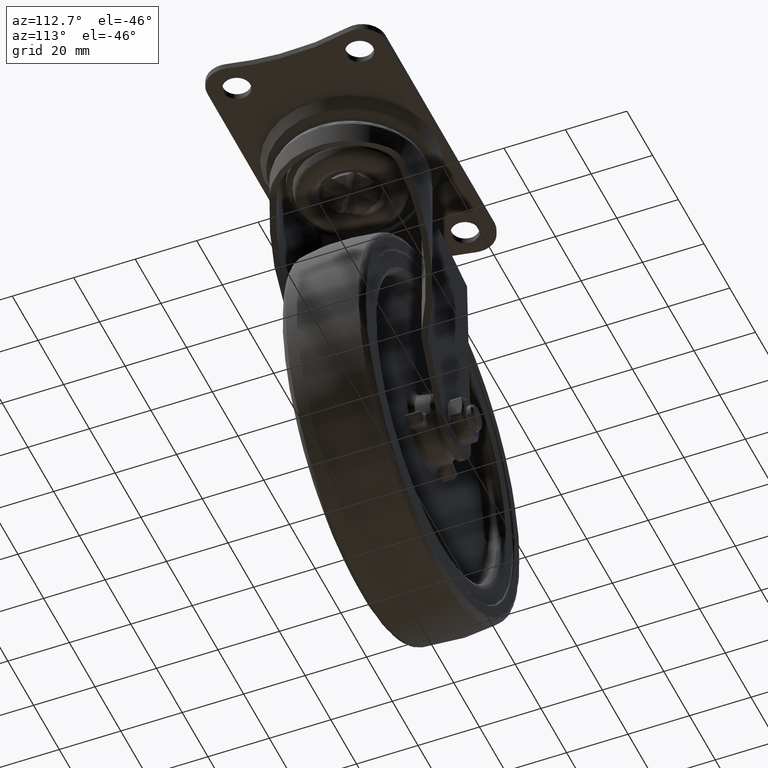
[diagram: clean part render]
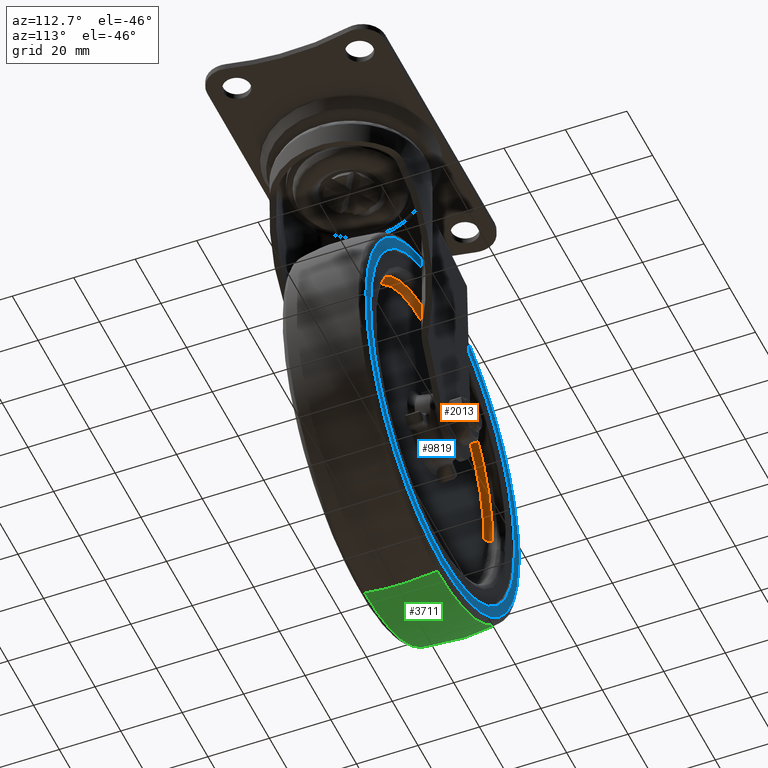
[diagram: same view with three faces highlighted in distinct colors, each labeled with its STEP entity id]
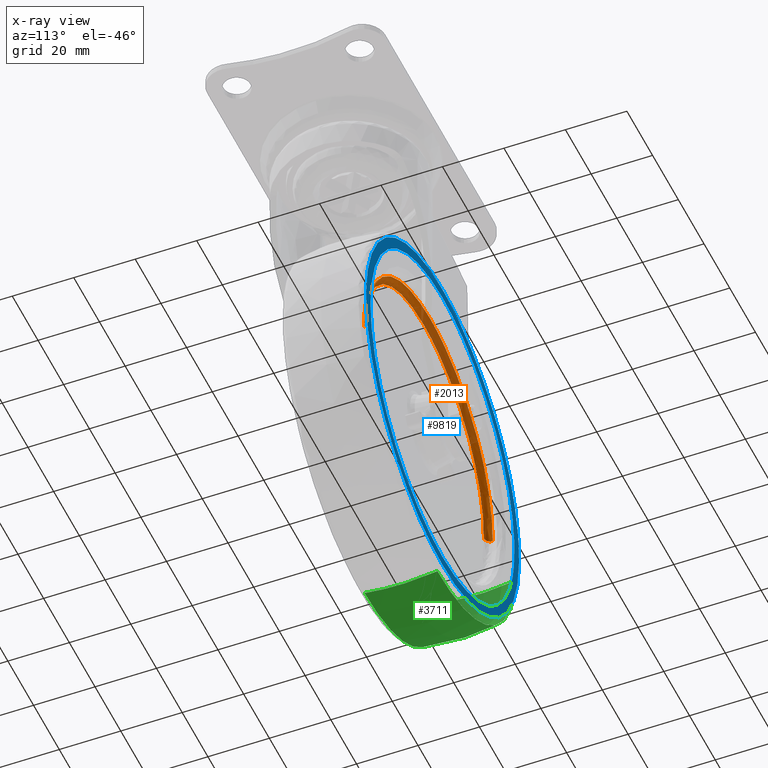
[diagram: x-ray of the same camera — body ghosted, the three highlighted faces saturated]
A machine part, auxiliary view with three faces highlighted in distinct colors.
The next image is the same camera in x-ray (body ghosted, the three faces saturated) — at least one of them is partly hidden behind the body in this view.
Their STEP definitions:

[orange] entity #2013 — the highlighted face is a freeform B-spline surface patch.
#70=CARTESIAN_POINT('',(-15.515347894196429,9.499999999543004,-41.065095552490142));
#71=VERTEX_POINT('',#70);
#72=CARTESIAN_POINT('',(9.484683180239800,9.499999996433619,-82.281190370988440));
#73=VERTEX_POINT('',#72);
#74=CARTESIAN_POINT('',(-15.515347894196433,9.499999999543004,-41.065095552490149));
#75=CARTESIAN_POINT('',(8.786683496961082,9.499999998528038,-54.514513198563122));
#76=CARTESIAN_POINT('',(9.484683180239800,9.499999996433619,-82.281190370988440));
#84=(BOUNDED_CURVE()B_SPLINE_CURVE(2,(#74,#75,#76),.UNSPECIFIED.,.F.,.U.)B_SPLINE_CURVE_WITH_KNOTS((3,3),(0.082484271170643,0.245579891769738),.UNSPECIFIED.)CURVE()GEOMETRIC_REPRESENTATION_ITEM()RATIONAL_B_SPLINE_CURVE((0.870495151638919,0.805504450365250,0.989826157681418))REPRESENTATION_ITEM(''));
#85=EDGE_CURVE('',#71,#73,#84,.T.);
#156=CARTESIAN_POINT('',(-74.757951996946005,9.499999999999751,-50.733876198364541));
#157=VERTEX_POINT('',#156);
#163=CARTESIAN_POINT('',(-87.484683180239813,9.499999996433619,-84.718809629011588));
#164=VERTEX_POINT('',#163);
#165=CARTESIAN_POINT('',(-87.484683180239813,9.499999996433619,-84.718809629011588));
#166=CARTESIAN_POINT('',(-87.500000000000014,9.500000000000000,-84.109501057993626));
#167=CARTESIAN_POINT('',(-87.500000000000000,9.500000000000000,-83.500000000000000));
#168=CARTESIAN_POINT('',(-87.500000000000014,9.500000000000000,-64.639382494878120));
#169=CARTESIAN_POINT('',(-74.757951996946048,9.500000000000000,-50.733876198364520));
#177=(BOUNDED_CURVE()B_SPLINE_CURVE(2,(#165,#166,#167,#168,#169),.UNSPECIFIED.,.F.,.U.)B_SPLINE_CURVE_WITH_KNOTS((3,2,3),(0.745579891769737,0.750000000000000,0.868415203732091),.UNSPECIFIED.)CURVE()GEOMETRIC_REPRESENTATION_ITEM()RATIONAL_B_SPLINE_CURVE((0.989826157681418,0.994821521091738,1.0,0.861267959289828,0.853959781498566))REPRESENTATION_ITEM(''));
#178=EDGE_CURVE('',#164,#157,#177,.T.);
#227=CARTESIAN_POINT('',(-39.0,9.500000000000000,-35.0));
#228=VERTEX_POINT('',#227);
#229=CARTESIAN_POINT('',(-39.0,9.500000000000000,-35.0));
#230=CARTESIAN_POINT('',(-26.474494705287569,9.500000000000000,-35.0));
#231=CARTESIAN_POINT('',(-15.515347894196433,9.499999999543004,-41.065095552490149));
#239=(BOUNDED_CURVE()B_SPLINE_CURVE(2,(#229,#230,#231),.UNSPECIFIED.,.F.,.U.)B_SPLINE_CURVE_WITH_KNOTS((3,3),(0.0,0.082484271170643),.UNSPECIFIED.)CURVE()GEOMETRIC_REPRESENTATION_ITEM()RATIONAL_B_SPLINE_CURVE((1.0,0.903363665261395,0.870495151638919))REPRESENTATION_ITEM(''));
#240=EDGE_CURVE('',#228,#71,#239,.T.);
#242=CARTESIAN_POINT('',(-74.757951996946048,9.500000000000000,-50.733876198364520));
#243=CARTESIAN_POINT('',(-60.340511774439769,9.500000000000000,-35.0));
#244=CARTESIAN_POINT('',(-39.0,9.500000000000000,-35.0));
#252=(BOUNDED_CURVE()B_SPLINE_CURVE(2,(#242,#243,#244),.UNSPECIFIED.,.F.,.U.)B_SPLINE_CURVE_WITH_KNOTS((3,3),(0.868415203732091,1.0),.UNSPECIFIED.)CURVE()GEOMETRIC_REPRESENTATION_ITEM()RATIONAL_B_SPLINE_CURVE((0.853959781498566,0.845838821896719,1.0))REPRESENTATION_ITEM(''));
#253=EDGE_CURVE('',#157,#228,#252,.T.);
#1924=CARTESIAN_POINT('',(-85.345908354361100,7.504867532818943,-84.665045034060483));
#1925=CARTESIAN_POINT('',(-86.510953388421541,7.504867532818942,-38.319136679699390));
#1926=CARTESIAN_POINT('',(-40.165045034060476,7.504867532818943,-37.154091645638914));
#1927=CARTESIAN_POINT('',(6.180863320300604,7.504867532818942,-35.989046611578409));
#1928=CARTESIAN_POINT('',(7.345908354361093,7.504867532818943,-82.334954965939502));
#1929=CARTESIAN_POINT('',(-87.639305983591768,7.344519057112481,-84.722696542336735));
#1930=CARTESIAN_POINT('',(-88.862002525928474,7.344519057112480,-36.083390558744924));
#1931=CARTESIAN_POINT('',(-40.222696542336720,7.344519057112481,-34.860694016408203));
#1932=CARTESIAN_POINT('',(8.416609441255057,7.344519057112480,-33.637997474071504));
#1933=CARTESIAN_POINT('',(9.639305983591783,7.344519057112481,-82.277303457663280));
#1934=CARTESIAN_POINT('',(-87.479869395098433,9.638701248359782,-84.718688619905862));
#1935=CARTESIAN_POINT('',(-88.698558015004309,9.638701248359780,-36.238819224807429));
#1936=CARTESIAN_POINT('',(-40.218688619905862,9.638701248359782,-35.020130604901553));
#1937=CARTESIAN_POINT('',(8.261180775192573,9.638701248359780,-33.801441984995698));
#1938=CARTESIAN_POINT('',(9.479869395098444,9.638701248359782,-82.281311380094124));
#1946=(BOUNDED_SURFACE()B_SPLINE_SURFACE(2,2,((#1924,#1929,#1934),(#1925,#1930,#1935),(#1926,#1931,#1936),(#1927,#1932,#1937),(#1928,#1933,#1938)),.UNSPECIFIED.,.F.,.F.,.U.)B_SPLINE_SURFACE_WITH_KNOTS((3,2,3),(3,3),(0.0,80.349452840392416,160.698905680784800),(0.0,3.644743337164236),.UNSPECIFIED.)GEOMETRIC_REPRESENTATION_ITEM()RATIONAL_B_SPLINE_SURFACE(((0.910893378424575,0.599412701631629,0.915966642454774),(0.644098884821941,0.423848786053074,0.647686224220445),(0.910893378424575,0.599412701631629,0.915966642454774),(0.644098884821941,0.423848786053074,0.647686224220445),(0.910893378424575,0.599412701631629,0.915966642454774)))REPRESENTATION_ITEM('')SURFACE());
#1947=ORIENTED_EDGE('',*,*,#253,.T.);
#1948=ORIENTED_EDGE('',*,*,#240,.T.);
#1949=ORIENTED_EDGE('',*,*,#85,.T.);
#1950=CARTESIAN_POINT('',(7.485314807628072,7.500000000000000,-82.331450561703960));
#1951=VERTEX_POINT('',#1950);
#1952=CARTESIAN_POINT('',(7.485314807628074,7.500000000000000,-82.331450561703960));
#1953=CARTESIAN_POINT('',(9.484683173109533,7.500000011914591,-82.281190371177402));
#1954=CARTESIAN_POINT('',(9.484683180239800,9.499999996433619,-82.281190370988440));
#1962=(BOUNDED_CURVE()B_SPLINE_CURVE(2,(#1952,#1953,#1954),.UNSPECIFIED.,.F.,.U.)B_SPLINE_CURVE_WITH_KNOTS((3,3),(-1.723441275851198,-0.263586882618901),.UNSPECIFIED.)CURVE()GEOMETRIC_REPRESENTATION_ITEM()RATIONAL_B_SPLINE_CURVE((0.883897564976921,0.626638728988241,0.888510407738326))REPRESENTATION_ITEM(''));
#1963=EDGE_CURVE('',#1951,#73,#1962,.T.);
#1964=ORIENTED_EDGE('',*,*,#1963,.F.);
#1965=CARTESIAN_POINT('',(-39.0,7.500000000000000,-37.000000000000007));
#1966=VERTEX_POINT('',#1965);
#1967=CARTESIAN_POINT('',(-39.0,7.500000000000000,-37.000000000000007));
#1968=CARTESIAN_POINT('',(6.345771242339388,7.500000000000001,-37.000000000000007));
#1969=CARTESIAN_POINT('',(7.485314807628072,7.500000000000000,-82.331450561703960));
#1977=(BOUNDED_CURVE()B_SPLINE_CURVE(2,(#1967,#1968,#1969),.UNSPECIFIED.,.F.,.U.)B_SPLINE_CURVE_WITH_KNOTS((3,3),(0.0,0.245579891769573),.UNSPECIFIED.)CURVE()GEOMETRIC_REPRESENTATION_ITEM()RATIONAL_B_SPLINE_CURVE((1.0,0.712285260095002,0.989826157681046))REPRESENTATION_ITEM(''));
#1978=EDGE_CURVE('',#1966,#1951,#1977,.T.);
#1979=ORIENTED_EDGE('',*,*,#1978,.F.);
#1980=CARTESIAN_POINT('',(-85.485314807628072,7.500000000000001,-84.668549438296054));
#1981=VERTEX_POINT('',#1980);
#1982=CARTESIAN_POINT('',(-85.485314807628072,7.500000000000001,-84.668549438296054));
#1983=CARTESIAN_POINT('',(-85.499999999999986,7.500000000000000,-84.084366993768313));
#1984=CARTESIAN_POINT('',(-85.499999999999986,7.500000000000000,-83.500000000000000));
#1985=CARTESIAN_POINT('',(-85.499999999999986,7.500000000000000,-37.000000000000007));
#1986=CARTESIAN_POINT('',(-39.0,7.500000000000000,-37.000000000000007));
#1994=(BOUNDED_CURVE()B_SPLINE_CURVE(2,(#1982,#1983,#1984,#1985,#1986),.UNSPECIFIED.,.F.,.U.)B_SPLINE_CURVE_WITH_KNOTS((3,2,3),(0.745579891769573,0.750000000000000,1.0),.UNSPECIFIED.)CURVE()GEOMETRIC_REPRESENTATION_ITEM()RATIONAL_B_SPLINE_CURVE((0.989826157681046,0.994821521091546,1.0,0.707106781186547,1.0))REPRESENTATION_ITEM(''));
#1995=EDGE_CURVE('',#1981,#1966,#1994,.T.);
#1996=ORIENTED_EDGE('',*,*,#1995,.F.);
#1997=CARTESIAN_POINT('',(-85.485314807628072,7.500000000000001,-84.668549438296054));
#1998=CARTESIAN_POINT('',(-87.484683173109531,7.500000011914603,-84.718809628822640));
#1999=CARTESIAN_POINT('',(-87.484683180239813,9.499999996433619,-84.718809629011588));
#2007=(BOUNDED_CURVE()B_SPLINE_CURVE(2,(#1997,#1998,#1999),.UNSPECIFIED.,.F.,.U.)B_SPLINE_CURVE_WITH_KNOTS((3,3),(-1.723441275851192,-0.263586882618903),.UNSPECIFIED.)CURVE()GEOMETRIC_REPRESENTATION_ITEM()RATIONAL_B_SPLINE_CURVE((0.883897564976919,0.626638728988242,0.888510407738326))REPRESENTATION_ITEM(''));
#2008=EDGE_CURVE('',#1981,#164,#2007,.T.);
#2009=ORIENTED_EDGE('',*,*,#2008,.T.);
#2010=ORIENTED_EDGE('',*,*,#178,.T.);
#2011=EDGE_LOOP('',(#1947,#1948,#1949,#1964,#1979,#1996,#2009,#2010));
#2012=FACE_OUTER_BOUND('',#2011,.T.);
#2013=ADVANCED_FACE('',(#2012),#1946,.F.);

[blue] entity #9819 — the highlighted face is a freeform B-spline surface patch.
#2276=CARTESIAN_POINT('',(-94.625451768124861,13.500000000000000,-89.965996841856722));
#2277=VERTEX_POINT('',#2276);
#2291=CARTESIAN_POINT('',(-39.0,13.500000000000000,-27.500000000000000));
#2292=VERTEX_POINT('',#2291);
#2293=CARTESIAN_POINT('',(-94.625451768124861,13.499999999999998,-89.965996841856722));
#2294=CARTESIAN_POINT('',(-95.0,13.499999999999998,-86.743846429468093));
#2295=CARTESIAN_POINT('',(-95.0,13.500000000000000,-83.500000000000000));
#2296=CARTESIAN_POINT('',(-94.999999999999986,13.500000000000000,-27.500000000000007));
#2297=CARTESIAN_POINT('',(-39.0,13.500000000000000,-27.500000000000000));
#2305=(BOUNDED_CURVE()B_SPLINE_CURVE(2,(#2293,#2294,#2295,#2296,#2297),.UNSPECIFIED.,.F.,.U.)B_SPLINE_CURVE_WITH_KNOTS((3,2,3),(0.730000000000078,0.750000000000000,1.0),.UNSPECIFIED.)CURVE()GEOMETRIC_REPRESENTATION_ITEM()RATIONAL_B_SPLINE_CURVE((0.956886118190814,0.976568542495016,1.0,0.707106781186547,1.0))REPRESENTATION_ITEM(''));
#2306=EDGE_CURVE('',#2277,#2292,#2305,.T.);
#2308=CARTESIAN_POINT('',(16.999999987765740,13.500000000000000,-83.500000000000000));
#2309=VERTEX_POINT('',#2308);
#2310=CARTESIAN_POINT('',(-39.0,13.500000000000000,-27.500000000000000));
#2311=CARTESIAN_POINT('',(17.000000000000036,13.500000000000000,-27.499999999999996));
#2312=CARTESIAN_POINT('',(16.999999987765751,13.500000000000011,-83.500000000000043));
#2320=(BOUNDED_CURVE()B_SPLINE_CURVE(2,(#2310,#2311,#2312),.UNSPECIFIED.,.F.,.U.)B_SPLINE_CURVE_WITH_KNOTS((3,3),(0.0,0.250000000000000),.UNSPECIFIED.)CURVE()GEOMETRIC_REPRESENTATION_ITEM()RATIONAL_B_SPLINE_CURVE((1.0,0.707106781186547,1.0))REPRESENTATION_ITEM(''));
#2321=EDGE_CURVE('',#2292,#2309,#2320,.T.);
#2406=CARTESIAN_POINT('',(-39.0,13.500000000000000,-139.500000000000000));
#2407=VERTEX_POINT('',#2406);
#2408=CARTESIAN_POINT('',(16.999999987765744,13.500000000000004,-83.500000000000000));
#2409=CARTESIAN_POINT('',(16.999999999999972,13.500000000000000,-139.499999999999970));
#2410=CARTESIAN_POINT('',(-39.0,13.500000000000000,-139.500000000000000));
#2418=(BOUNDED_CURVE()B_SPLINE_CURVE(2,(#2408,#2409,#2410),.UNSPECIFIED.,.F.,.U.)B_SPLINE_CURVE_WITH_KNOTS((3,3),(0.250000000000000,0.500000000000000),.UNSPECIFIED.)CURVE()GEOMETRIC_REPRESENTATION_ITEM()RATIONAL_B_SPLINE_CURVE((1.000000000000000,0.707106781186548,1.0))REPRESENTATION_ITEM(''));
#2419=EDGE_CURVE('',#2309,#2407,#2418,.T.);
#2421=CARTESIAN_POINT('',(-39.0,13.500000000000000,-139.500000000000000));
#2422=CARTESIAN_POINT('',(-88.867535246332295,13.500000000000000,-139.500000000000000));
#2423=CARTESIAN_POINT('',(-94.625451768124876,13.499999999999995,-89.965996841856722));
#2431=(BOUNDED_CURVE()B_SPLINE_CURVE(2,(#2421,#2422,#2423),.UNSPECIFIED.,.F.,.U.)B_SPLINE_CURVE_WITH_KNOTS((3,3),(0.500000000000000,0.730000000000079),.UNSPECIFIED.)CURVE()GEOMETRIC_REPRESENTATION_ITEM()RATIONAL_B_SPLINE_CURVE((1.0,0.730538238691531,0.956886118190815))REPRESENTATION_ITEM(''));
#2432=EDGE_CURVE('',#2407,#2277,#2431,.T.);
#2461=CARTESIAN_POINT('',(19.078296912159971,13.500000000000000,-96.523196268190375));
#2462=VERTEX_POINT('',#2461);
#2463=CARTESIAN_POINT('',(-39.0,13.500000000000000,-143.020519245974210));
#2464=VERTEX_POINT('',#2463);
#2465=CARTESIAN_POINT('',(19.078296912159978,13.499999999999998,-96.523196268190375));
#2466=CARTESIAN_POINT('',(8.651962183626241,13.500000000000005,-143.020519245974240));
#2467=CARTESIAN_POINT('',(-39.0,13.500000000000000,-143.020519245974210));
#2475=(BOUNDED_CURVE()B_SPLINE_CURVE(2,(#2465,#2466,#2467),.UNSPECIFIED.,.F.,.U.)B_SPLINE_CURVE_WITH_KNOTS((3,3),(0.287436176724158,0.500000000000000),.UNSPECIFIED.)CURVE()GEOMETRIC_REPRESENTATION_ITEM()RATIONAL_B_SPLINE_CURVE((0.925416950447249,0.750965990389779,1.0))REPRESENTATION_ITEM(''));
#2476=EDGE_CURVE('',#2462,#2464,#2475,.T.);
#2540=CARTESIAN_POINT('',(-97.728059739771595,13.500000000000000,-73.819751477555087));
#2541=VERTEX_POINT('',#2540);
#2555=CARTESIAN_POINT('',(-39.0,13.500000000000000,-143.020519245974210));
#2556=CARTESIAN_POINT('',(-98.520519245974185,13.500000000000000,-143.020519245974190));
#2557=CARTESIAN_POINT('',(-98.520519245974185,13.500000000000000,-83.500000000000000));
#2558=CARTESIAN_POINT('',(-98.520519245974185,13.499999999999996,-78.627438964652796));
#2559=CARTESIAN_POINT('',(-97.728059739771595,13.499999999999996,-73.819751477555087));
#2567=(BOUNDED_CURVE()B_SPLINE_CURVE(2,(#2555,#2556,#2557,#2558,#2559),.UNSPECIFIED.,.F.,.U.)B_SPLINE_CURVE_WITH_KNOTS((3,2,3),(0.500000000000000,0.750000000000000,0.777993891200865),.UNSPECIFIED.)CURVE()GEOMETRIC_REPRESENTATION_ITEM()RATIONAL_B_SPLINE_CURVE((1.0,0.707106781186548,1.0,0.967203116396260,0.941751131923165))REPRESENTATION_ITEM(''));
#2568=EDGE_CURVE('',#2464,#2541,#2567,.T.);
#2602=CARTESIAN_POINT('',(-39.0,13.500000000000000,-23.979480754025811));
#2603=VERTEX_POINT('',#2602);
#2604=CARTESIAN_POINT('',(-39.0,13.500000000000000,-23.979480754025811));
#2605=CARTESIAN_POINT('',(20.520519245974189,13.500000000000000,-23.979480754025811));
#2606=CARTESIAN_POINT('',(20.520519245974189,13.500000000000000,-83.500000000000000));
#2607=CARTESIAN_POINT('',(20.520519245974192,13.500000000000005,-90.091455844152136));
#2608=CARTESIAN_POINT('',(19.078296912159978,13.499999999999998,-96.523196268190375));
#2616=(BOUNDED_CURVE()B_SPLINE_CURVE(2,(#2604,#2605,#2606,#2607,#2608),.UNSPECIFIED.,.F.,.U.)B_SPLINE_CURVE_WITH_KNOTS((3,2,3),(0.0,0.250000000000000,0.287436176724158),.UNSPECIFIED.)CURVE()GEOMETRIC_REPRESENTATION_ITEM()RATIONAL_B_SPLINE_CURVE((1.0,0.707106781186548,1.0,0.956140790796769,0.925416950447249))REPRESENTATION_ITEM(''));
#2617=EDGE_CURVE('',#2603,#2462,#2616,.T.);
#2619=CARTESIAN_POINT('',(-97.728059739771595,13.500000000000002,-73.819751477555087));
#2620=CARTESIAN_POINT('',(-89.512800975174585,13.500000000000002,-23.979480754025808));
#2621=CARTESIAN_POINT('',(-39.0,13.500000000000000,-23.979480754025811));
#2629=(BOUNDED_CURVE()B_SPLINE_CURVE(2,(#2619,#2620,#2621),.UNSPECIFIED.,.F.,.U.)B_SPLINE_CURVE_WITH_KNOTS((3,3),(0.777993891200864,1.0),.UNSPECIFIED.)CURVE()GEOMETRIC_REPRESENTATION_ITEM()RATIONAL_B_SPLINE_CURVE((0.941751131923166,0.739903664790287,1.0))REPRESENTATION_ITEM(''));
#2630=EDGE_CURVE('',#2541,#2603,#2629,.T.);
#9802=CARTESIAN_POINT('',(-104.462963582063100,13.500000000000000,-18.033381112077620));
#9803=CARTESIAN_POINT('',(-104.462963582063100,13.500000000000000,-148.966622080851810));
#9804=CARTESIAN_POINT('',(26.456047976624799,13.500000000000000,-18.033381112077620));
#9805=CARTESIAN_POINT('',(26.456047976624799,13.500000000000000,-148.966622080851810));
#9806=B_SPLINE_SURFACE_WITH_KNOTS('',1,1,((#9802,#9804),(#9803,#9805)),.UNSPECIFIED.,.F.,.F.,.U.,(2,2),(2,2),(0.0,130.933240968774190),(0.0,130.919011558687910),.UNSPECIFIED.);
#9807=ORIENTED_EDGE('',*,*,#2617,.T.);
#9808=ORIENTED_EDGE('',*,*,#2476,.T.);
#9809=ORIENTED_EDGE('',*,*,#2568,.T.);
#9810=ORIENTED_EDGE('',*,*,#2630,.T.);
#9811=EDGE_LOOP('',(#9807,#9808,#9809,#9810));
#9812=FACE_OUTER_BOUND('',#9811,.T.);
#9813=ORIENTED_EDGE('',*,*,#2321,.F.);
#9814=ORIENTED_EDGE('',*,*,#2306,.F.);
#9815=ORIENTED_EDGE('',*,*,#2432,.F.);
#9816=ORIENTED_EDGE('',*,*,#2419,.F.);
#9817=EDGE_LOOP('',(#9813,#9814,#9815,#9816));
#9818=FACE_BOUND('',#9817,.T.);
#9819=ADVANCED_FACE('',(#9812,#9818),#9806,.F.);

[green] entity #3711 — the highlighted face is a freeform B-spline surface patch.
#2493=CARTESIAN_POINT('',(-39.0,11.838179853672541,-144.991720501440910));
#2494=VERTEX_POINT('',#2493);
#2508=CARTESIAN_POINT('',(-100.080444287151490,11.838215773613619,-90.600018162324204));
#2509=VERTEX_POINT('',#2508);
#2510=CARTESIAN_POINT('',(-39.0,11.838179853672541,-144.991720501440910));
#2511=CARTESIAN_POINT('',(-93.757927877730324,11.838197813643077,-144.991715938341000));
#2512=CARTESIAN_POINT('',(-100.080444287151510,11.838215773613619,-90.600018162324204));
#2520=(BOUNDED_CURVE()B_SPLINE_CURVE(2,(#2510,#2511,#2512),.UNSPECIFIED.,.F.,.U.)B_SPLINE_CURVE_WITH_KNOTS((3,3),(0.500000000000000,0.730000208378734),.UNSPECIFIED.)CURVE()GEOMETRIC_REPRESENTATION_ITEM()RATIONAL_B_SPLINE_CURVE((1.0,0.730537994560751,0.956886528330933))REPRESENTATION_ITEM(''));
#2521=EDGE_CURVE('',#2494,#2509,#2520,.T.);
#2704=CARTESIAN_POINT('',(-39.0,-11.838173526784241,-144.991721587055790));
#2705=VERTEX_POINT('',#2704);
#2811=CARTESIAN_POINT('',(-100.080445270436200,-11.838210012402730,-90.600018264951956));
#2812=VERTEX_POINT('',#2811);
#2828=CARTESIAN_POINT('',(-39.0,-11.838173526784241,-144.991721587055790));
#2829=CARTESIAN_POINT('',(-93.757928379095262,-11.838191769593482,-144.991716538219460));
#2830=CARTESIAN_POINT('',(-100.080445270436170,-11.838210012402723,-90.600018264951956));
#2838=(BOUNDED_CURVE()B_SPLINE_CURVE(2,(#2828,#2829,#2830),.UNSPECIFIED.,.F.,.U.)B_SPLINE_CURVE_WITH_KNOTS((3,3),(0.500000000000000,0.730000208410621),.UNSPECIFIED.)CURVE()GEOMETRIC_REPRESENTATION_ITEM()RATIONAL_B_SPLINE_CURVE((1.0,0.730537994523393,0.956886528393695))REPRESENTATION_ITEM(''));
#2839=EDGE_CURVE('',#2705,#2812,#2838,.T.);
#3633=CARTESIAN_POINT('',(-100.080444287151510,11.838215773613614,-90.600018162324204));
#3634=CARTESIAN_POINT('',(-101.081986170762260,5.962046788902523,-90.716439086369917));
#3635=CARTESIAN_POINT('',(-101.081986171098860,1.565737E-013,-90.716439083470121));
#3636=CARTESIAN_POINT('',(-101.081986171435470,-5.962043844995955,-90.716439080570368));
#3637=CARTESIAN_POINT('',(-100.080445270436170,-11.838210012402724,-90.600018264951956));
#3645=(BOUNDED_CURVE()B_SPLINE_CURVE(2,(#3633,#3634,#3635,#3636,#3637),.UNSPECIFIED.,.F.,.U.)B_SPLINE_CURVE_WITH_KNOTS((3,2,3),(0.438277075696623,0.500000000000000,0.561722894789230),.UNSPECIFIED.)CURVE()GEOMETRIC_REPRESENTATION_ITEM()RATIONAL_B_SPLINE_CURVE((0.903877673435679,0.926649284179477,0.956886118190660,0.926649298637872,0.903877695213154))REPRESENTATION_ITEM(''));
#3646=EDGE_CURVE('',#2509,#2812,#3645,.T.);
#3652=CARTESIAN_POINT('',(-39.0,11.838179853672537,-144.991720501440940));
#3653=CARTESIAN_POINT('',(-39.0,5.962028434266493,-146.0));
#3654=CARTESIAN_POINT('',(-39.0,-1.396051E-014,-146.0));
#3655=CARTESIAN_POINT('',(-39.0,-5.962025201306943,-146.000000000000030));
#3656=CARTESIAN_POINT('',(-39.0,-11.838173526784248,-144.991721587055790));
#3664=(BOUNDED_CURVE()B_SPLINE_CURVE(2,(#3652,#3653,#3654,#3655,#3656),.UNSPECIFIED.,.F.,.U.)B_SPLINE_CURVE_WITH_KNOTS((3,2,3),(0.438277259711215,0.500000000000000,0.561722707876726),.UNSPECIFIED.)CURVE()GEOMETRIC_REPRESENTATION_ITEM()RATIONAL_B_SPLINE_CURVE((0.944603325339162,0.968400896103223,1.0,0.968400912696653,0.944603350332489))REPRESENTATION_ITEM(''));
#3665=EDGE_CURVE('',#2494,#2705,#3664,.T.);
#3672=CARTESIAN_POINT('',(-38.602459246699375,13.042988381565459,-144.774126341803540));
#3673=CARTESIAN_POINT('',(-38.594505894009991,6.579102393055754,-146.0));
#3674=CARTESIAN_POINT('',(-38.594505894009998,-1.396051E-014,-146.000000000000060));
#3675=CARTESIAN_POINT('',(-38.594505894009991,-6.579096408803960,-146.000000000000060));
#3676=CARTESIAN_POINT('',(-38.602459232357589,-13.042976725623554,-144.774128552347720));
#3677=CARTESIAN_POINT('',(-38.800962178365360,13.042988381565458,-144.774126341803480));
#3678=CARTESIAN_POINT('',(-38.796980151413798,6.579102393055754,-146.000000000000060));
#3679=CARTESIAN_POINT('',(-38.796980151413806,-1.396051E-014,-146.000000000000060));
#3680=CARTESIAN_POINT('',(-38.796980151413813,-6.579096408803960,-146.000000000000090));
#3681=CARTESIAN_POINT('',(-38.800962171184828,-13.042976725623554,-144.774128552347690));
#3682=CARTESIAN_POINT('',(-93.564100982797612,13.042988381565451,-144.774126341803480));
#3683=CARTESIAN_POINT('',(-94.655731301683986,6.579102393055753,-145.999999999999940));
#3684=CARTESIAN_POINT('',(-94.655731301684000,-1.396051E-014,-146.000000000000060));
#3685=CARTESIAN_POINT('',(-94.655731301684000,-6.579096408803961,-146.000000000000090));
#3686=CARTESIAN_POINT('',(-93.564102951268879,-13.042976725623555,-144.774128552347720));
#3687=CARTESIAN_POINT('',(-99.888328372310355,13.042988381565452,-90.368283866280976));
#3688=CARTESIAN_POINT('',(-101.106483608451380,6.579102393055754,-90.505693385948760));
#3689=CARTESIAN_POINT('',(-101.106483608451380,-1.396051E-014,-90.505693385948760));
#3690=CARTESIAN_POINT('',(-101.106483608451400,-6.579096408803961,-90.505693385948774));
#3691=CARTESIAN_POINT('',(-99.888330568936382,-13.042976725623557,-90.368284114063314));
#3692=CARTESIAN_POINT('',(-99.912297185252214,13.042988381565461,-90.162085799557204));
#3693=CARTESIAN_POINT('',(-101.130931950652270,6.579102393055754,-90.295370041665592));
#3694=CARTESIAN_POINT('',(-101.130931950652270,-1.396051E-014,-90.295370041665606));
#3695=CARTESIAN_POINT('',(-101.130931950652280,-6.579096408803961,-90.295370041665620));
#3696=CARTESIAN_POINT('',(-99.912299382742930,-13.042976725623557,-90.162086039900643));
#3704=(BOUNDED_SURFACE()B_SPLINE_SURFACE(2,2,((#3672,#3677,#3682,#3687,#3692),(#3673,#3678,#3683,#3688,#3693),(#3674,#3679,#3684,#3689,#3694),(#3675,#3680,#3685,#3690,#3695),(#3676,#3681,#3686,#3691,#3696)),.UNSPECIFIED.,.F.,.F.,.U.)B_SPLINE_SURFACE_WITH_KNOTS((3,2,3),(3,1,1,3),(0.0,13.512632939454781,27.025254015204631),(0.0,0.475823531880879,95.640445803353160,96.116355567032073),.UNSPECIFIED.)GEOMETRIC_REPRESENTATION_ITEM()RATIONAL_B_SPLINE_SURFACE(((0.942459017312425,0.941192645247870,0.686652084111321,0.900466348246092,0.901530293560388),(0.967845003815713,0.966544520873605,0.705147679378066,0.924721224207094,0.925813827851240),(1.002694619994536,1.001347309997268,0.730538238691624,0.958018063689632,0.959150009188605),(0.967845034412678,0.966544551429457,0.705147701670250,0.924721253440766,0.925813857119453),(0.942459061888771,0.941192689764320,0.686652116588533,0.900466390836273,0.901530336200891)))REPRESENTATION_ITEM('')SURFACE());
#3705=ORIENTED_EDGE('',*,*,#2521,.F.);
#3706=ORIENTED_EDGE('',*,*,#3665,.T.);
#3707=ORIENTED_EDGE('',*,*,#2839,.T.);
#3708=ORIENTED_EDGE('',*,*,#3646,.F.);
#3709=EDGE_LOOP('',(#3705,#3706,#3707,#3708));
#3710=FACE_OUTER_BOUND('',#3709,.T.);
#3711=ADVANCED_FACE('',(#3710),#3704,.T.);